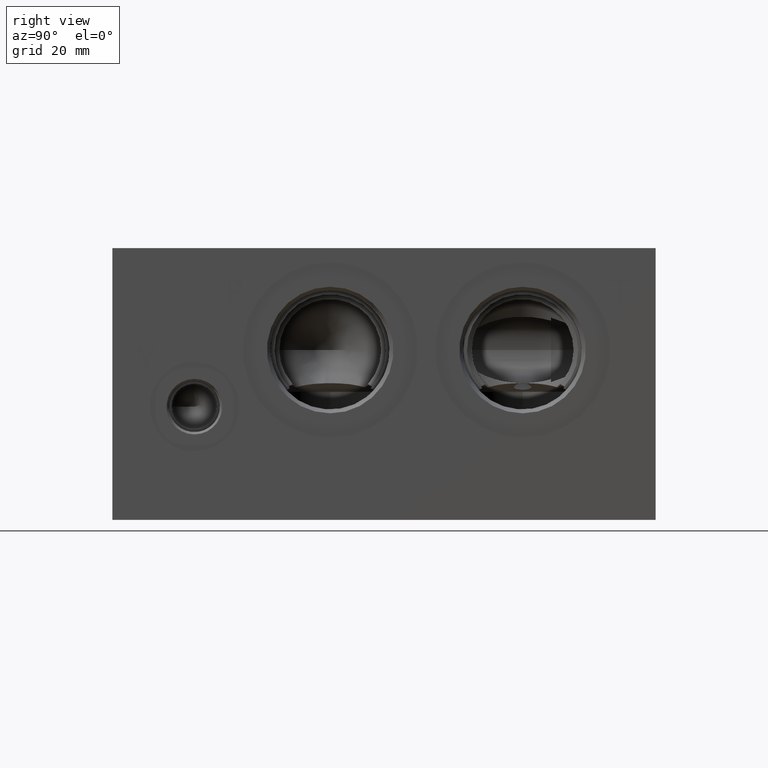
[diagram: clean part render]
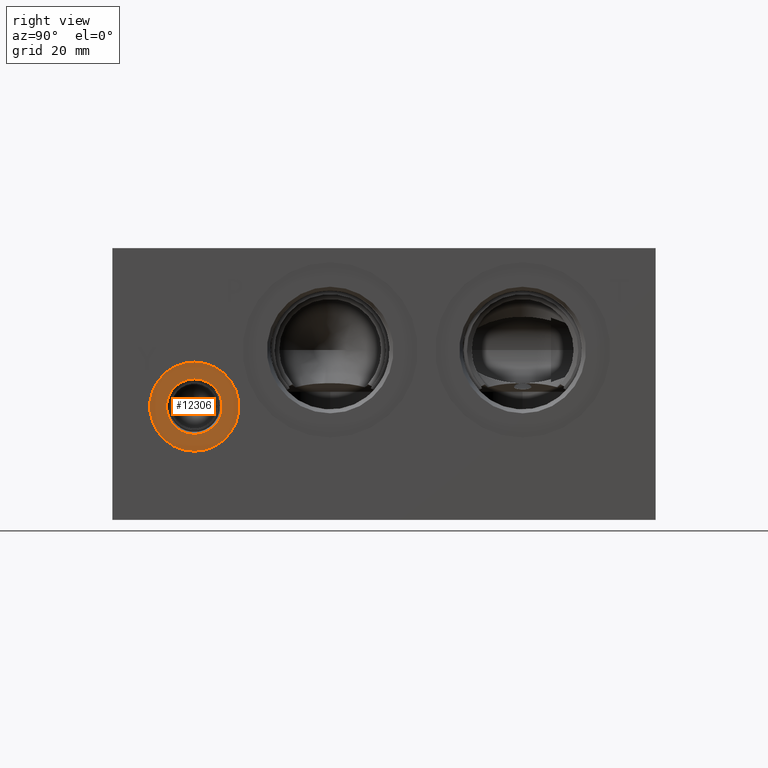
[diagram: same view with one face highlighted and labeled with its STEP entity id]
A machine part, right view. The second image highlights one B-rep face of the part: STEP entity #12306.
In plain terms, the highlighted planar face has unit normal (-1, 0, 0).
Its self-contained STEP definition (entity closure, byte-faithful):
#218=CIRCLE('',#12868,12.5095);
#219=CIRCLE('',#12869,12.5095);
#220=CIRCLE('',#12871,7.7978);
#221=CIRCLE('',#12872,7.7978);
#479=FACE_BOUND('',#2071,.T.);
#838=PLANE('',#12870);
#1376=FACE_OUTER_BOUND('',#2070,.T.);
#2070=EDGE_LOOP('',(#10508,#10509));
#2071=EDGE_LOOP('',(#10510,#10511));
#5754=VERTEX_POINT('',#20994);
#5755=VERTEX_POINT('',#20996);
#5756=VERTEX_POINT('',#21000);
#5757=VERTEX_POINT('',#21001);
#7407=EDGE_CURVE('',#5754,#5755,#218,.T.);
#7408=EDGE_CURVE('',#5755,#5754,#219,.T.);
#7409=EDGE_CURVE('',#5756,#5757,#220,.T.);
#7410=EDGE_CURVE('',#5757,#5756,#221,.T.);
#10508=ORIENTED_EDGE('',*,*,#7408,.F.);
#10509=ORIENTED_EDGE('',*,*,#7407,.F.);
#10510=ORIENTED_EDGE('',*,*,#7409,.T.);
#10511=ORIENTED_EDGE('',*,*,#7410,.T.);
#12306=ADVANCED_FACE('',(#1376,#479),#838,.F.);
#12868=AXIS2_PLACEMENT_3D('',#20997,#15057,#15058);
#12869=AXIS2_PLACEMENT_3D('',#20998,#15059,#15060);
#12870=AXIS2_PLACEMENT_3D('',#20999,#15061,#15062);
#12871=AXIS2_PLACEMENT_3D('',#21002,#15063,#15064);
#12872=AXIS2_PLACEMENT_3D('',#21003,#15065,#15066);
#15057=DIRECTION('center_axis',(-1.,0.,0.));
#15058=DIRECTION('ref_axis',(0.,0.,1.));
#15059=DIRECTION('center_axis',(-1.,0.,0.));
#15060=DIRECTION('ref_axis',(0.,0.,1.));
#15061=DIRECTION('center_axis',(-1.,0.,0.));
#15062=DIRECTION('ref_axis',(0.,0.,1.));
#15063=DIRECTION('center_axis',(-1.,0.,0.));
#15064=DIRECTION('ref_axis',(0.,0.,1.));
#15065=DIRECTION('center_axis',(-1.,0.,0.));
#15066=DIRECTION('ref_axis',(0.,0.,1.));
#20994=CARTESIAN_POINT('',(113.5126,23.0124,44.2595));
#20996=CARTESIAN_POINT('',(113.5126,23.0124,19.2405));
#20997=CARTESIAN_POINT('Origin',(113.5126,23.0124,31.75));
#20998=CARTESIAN_POINT('Origin',(113.5126,23.0124,31.75));
#20999=CARTESIAN_POINT('Origin',(113.5126,23.0124,23.9522));
#21000=CARTESIAN_POINT('',(113.5126,23.0124,23.9522));
#21001=CARTESIAN_POINT('',(113.5126,23.0124,39.5478));
#21002=CARTESIAN_POINT('Origin',(113.5126,23.0124,31.75));
#21003=CARTESIAN_POINT('Origin',(113.5126,23.0124,31.75));